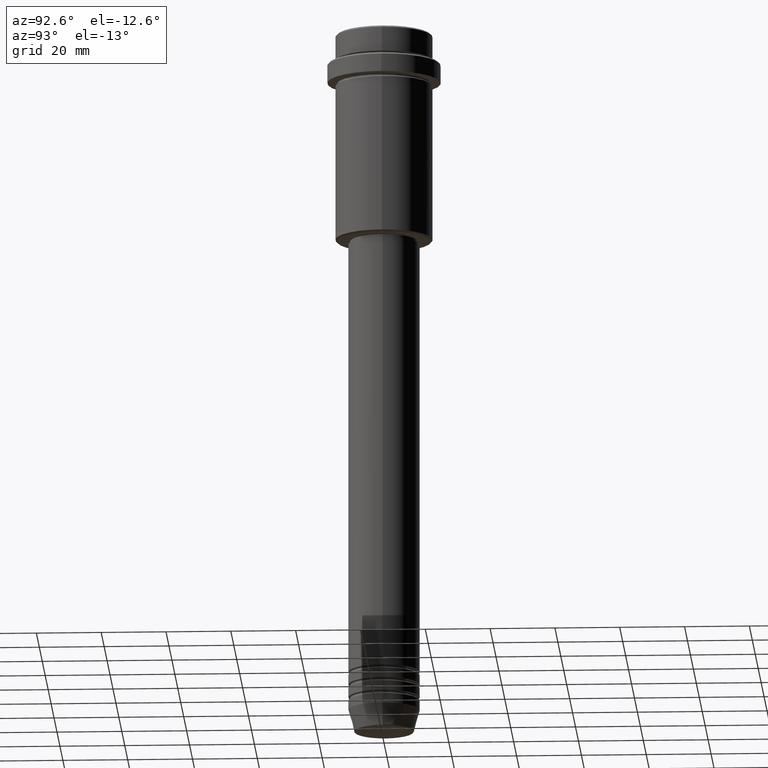
[diagram: clean part render]
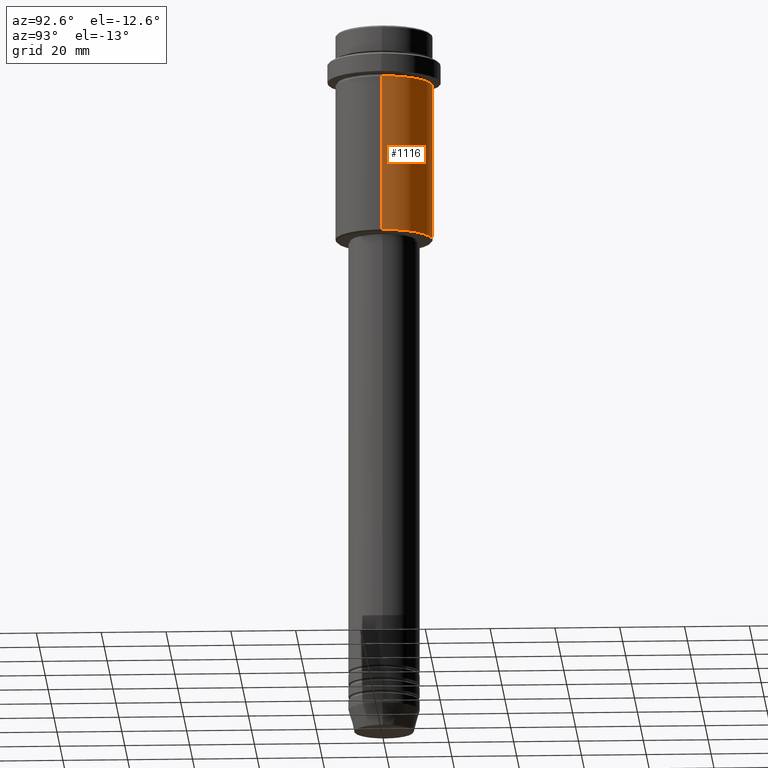
[diagram: same view with one face highlighted and labeled with its STEP entity id]
A machine part, auxiliary view. The second image highlights one B-rep face of the part: STEP entity #1116.
In plain terms, the highlighted cylindrical surface (partial cylindrical patch) has radius 15 mm, axis along (-0, -0, 1).
Its self-contained STEP definition (entity closure, byte-faithful):
#13 = AXIS2_PLACEMENT_3D ( 'NONE', #1330, #1362, #393 ) ;
#93 = CARTESIAN_POINT ( 'NONE',  ( 0.000000000000000000, 0.000000000000000000, -64.49999999999995737 ) ) ;
#174 = LINE ( 'NONE', #711, #1295 ) ;
#194 = ORIENTED_EDGE ( 'NONE', *, *, #1013, .T. ) ;
#295 = EDGE_LOOP ( 'NONE', ( #194, #675, #1306, #355 ) ) ;
#316 = CYLINDRICAL_SURFACE ( 'NONE', #782, 15.00000000000000000 ) ;
#318 = AXIS2_PLACEMENT_3D ( 'NONE', #93, #969, #327 ) ;
#327 = DIRECTION ( 'NONE',  ( -1.000000000000000000, 0.000000000000000000, 0.000000000000000000 ) ) ;
#355 = ORIENTED_EDGE ( 'NONE', *, *, #709, .F. ) ;
#357 = EDGE_CURVE ( 'NONE', #1237, #539, #622, .T. ) ;
#366 = DIRECTION ( 'NONE',  ( -0.000000000000000000, -0.000000000000000000, 1.000000000000000000 ) ) ;
#393 = DIRECTION ( 'NONE',  ( 1.000000000000000000, 0.000000000000000000, 0.000000000000000000 ) ) ;
#453 = VERTEX_POINT ( 'NONE', #546 ) ;
#463 = DIRECTION ( 'NONE',  ( 1.000000000000000000, 0.000000000000000000, 0.000000000000000000 ) ) ;
#516 = LINE ( 'NONE', #867, #1405 ) ;
#539 = VERTEX_POINT ( 'NONE', #875 ) ;
#546 = CARTESIAN_POINT ( 'NONE',  ( -15.00000000000000000, 1.836970198721029589E-15, -64.49999999999995737 ) ) ;
#622 = CIRCLE ( 'NONE', #13, 15.00000000000000178 ) ;
#665 = CARTESIAN_POINT ( 'NONE',  ( 15.00000000000000178, 0.000000000000000000, -16.00000000000000000 ) ) ;
#675 = ORIENTED_EDGE ( 'NONE', *, *, #1054, .T. ) ;
#701 = VERTEX_POINT ( 'NONE', #1417 ) ;
#709 = EDGE_CURVE ( 'NONE', #701, #1237, #174, .T. ) ;
#711 = CARTESIAN_POINT ( 'NONE',  ( 15.00000000000000000, 0.000000000000000000, 0.000000000000000000 ) ) ;
#758 = CIRCLE ( 'NONE', #318, 15.00000000000000000 ) ;
#760 = CARTESIAN_POINT ( 'NONE',  ( 0.000000000000000000, 0.000000000000000000, 0.000000000000000000 ) ) ;
#782 = AXIS2_PLACEMENT_3D ( 'NONE', #760, #366, #463 ) ;
#867 = CARTESIAN_POINT ( 'NONE',  ( -15.00000000000000000, 1.836970198721029589E-15, 0.000000000000000000 ) ) ;
#875 = CARTESIAN_POINT ( 'NONE',  ( -15.00000000000000355, 1.836970198721029983E-15, -16.00000000000000000 ) ) ;
#969 = DIRECTION ( 'NONE',  ( -0.000000000000000000, -0.000000000000000000, 1.000000000000000000 ) ) ;
#1013 = EDGE_CURVE ( 'NONE', #701, #453, #758, .T. ) ;
#1054 = EDGE_CURVE ( 'NONE', #453, #539, #516, .T. ) ;
#1116 = ADVANCED_FACE ( 'NONE', ( #1284 ), #316, .T. ) ;
#1119 = DIRECTION ( 'NONE',  ( -0.000000000000000000, -0.000000000000000000, 1.000000000000000000 ) ) ;
#1171 = DIRECTION ( 'NONE',  ( -0.000000000000000000, -0.000000000000000000, 1.000000000000000000 ) ) ;
#1237 = VERTEX_POINT ( 'NONE', #665 ) ;
#1284 = FACE_OUTER_BOUND ( 'NONE', #295, .T. ) ;
#1295 = VECTOR ( 'NONE', #1119, 1000.000000000000000 ) ;
#1306 = ORIENTED_EDGE ( 'NONE', *, *, #357, .F. ) ;
#1330 = CARTESIAN_POINT ( 'NONE',  ( 0.000000000000000000, 0.000000000000000000, -16.00000000000000000 ) ) ;
#1362 = DIRECTION ( 'NONE',  ( -0.000000000000000000, -0.000000000000000000, 1.000000000000000000 ) ) ;
#1405 = VECTOR ( 'NONE', #1171, 1000.000000000000000 ) ;
#1417 = CARTESIAN_POINT ( 'NONE',  ( 15.00000000000000000, 0.000000000000000000, -64.49999999999995737 ) ) ;